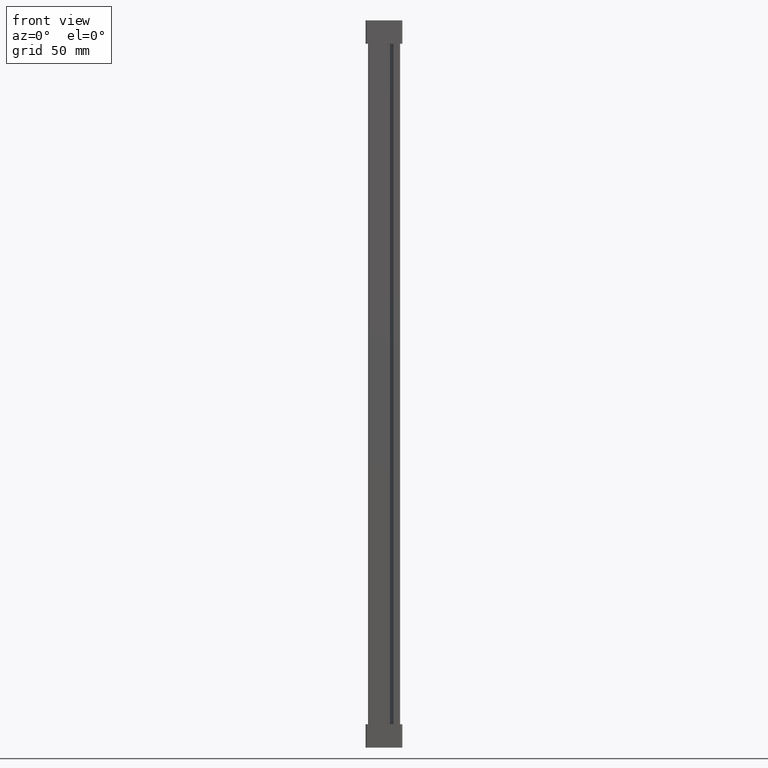
[diagram: clean part render]
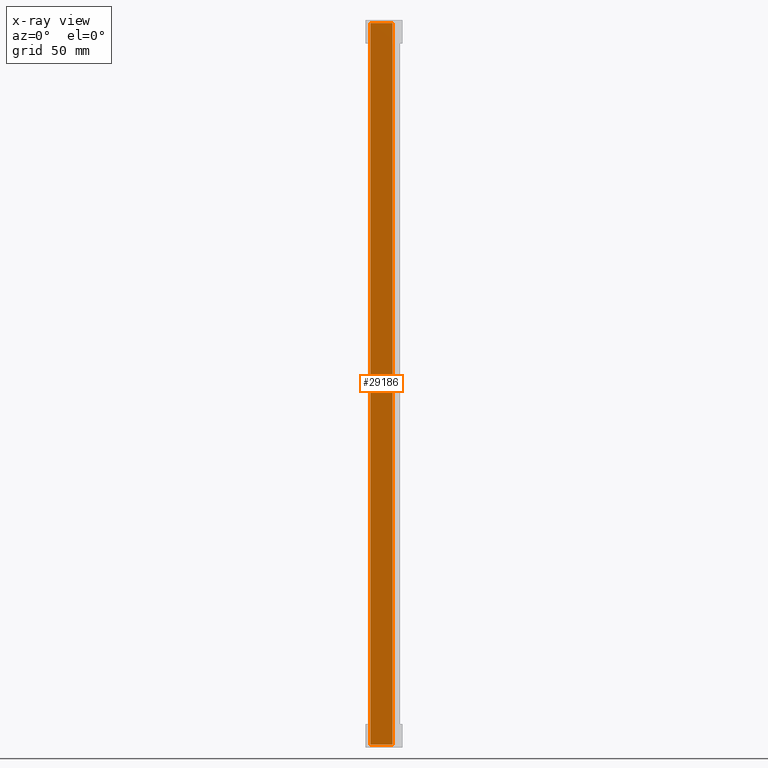
[diagram: x-ray — body ghosted, one internal face saturated and labeled with its STEP entity id]
A machine part, front view, then the same camera in x-ray: the body is ghosted and one INTERNAL B-rep face — a face not visible from any outside direction — is saturated and labeled: STEP entity #29186.
In plain terms, the highlighted planar face has unit normal (0, 1, 0).
Its self-contained STEP definition (entity closure, byte-faithful):
#1831 = AXIS2_PLACEMENT_3D ( 'NONE', #24348, #24334, #24320 ) ;
#2314 = VECTOR ( 'NONE', #7152, 1000.000000000000000 ) ;
#2333 = VECTOR ( 'NONE', #7169, 1000.000000000000000 ) ;
#2352 = VECTOR ( 'NONE', #7177, 1000.000000000000000 ) ;
#2407 = VECTOR ( 'NONE', #7204, 1000.000000000000000 ) ;
#7138 = LINE ( 'NONE', #7181, #2352 ) ;
#7147 = LINE ( 'NONE', #7179, #2333 ) ;
#7151 = LINE ( 'NONE', #7162, #2314 ) ;
#7152 = DIRECTION ( 'NONE',  ( -0.0000000000000000000, -0.0000000000000000000, -1.000000000000000000 ) ) ;
#7162 = CARTESIAN_POINT ( 'NONE',  ( 10.24323328473354500, 16.44999999999991800, -105.0100000000000200 ) ) ;
#7169 = DIRECTION ( 'NONE',  ( 0.0000000000000000000, -0.0000000000000000000, 1.000000000000000000 ) ) ;
#7177 = DIRECTION ( 'NONE',  ( -1.000000000000000000, -0.0000000000000000000, 4.965472477636011600E-013 ) ) ;
#7179 = CARTESIAN_POINT ( 'NONE',  ( 0.4259999999998995700, 16.44999999999995700, 219.0000000000000000 ) ) ;
#7181 = CARTESIAN_POINT ( 'NONE',  ( 13.86600000010872900, 16.44999999999995700, 217.8000000000516800 ) ) ;
#7204 = DIRECTION ( 'NONE',  ( 1.000000000000000000, -0.0000000000000000000, 4.965472477636011600E-013 ) ) ;
#7209 = LINE ( 'NONE', #7221, #2407 ) ;
#7221 = CARTESIAN_POINT ( 'NONE',  ( 13.86600000010872900, 16.44999999999995700, -103.8000000000516800 ) ) ;
#8175 = CARTESIAN_POINT ( 'NONE',  ( 0.4259999999999116700, 16.44999999999995700, -103.8000000000583600 ) ) ;
#8204 = CARTESIAN_POINT ( 'NONE',  ( 0.4259999999999001300, 16.44999999999995700, 217.8000000000583600 ) ) ;
#8224 = CARTESIAN_POINT ( 'NONE',  ( 10.24323328473354500, 16.44999999999994600, 217.8000000000267300 ) ) ;
#8275 = CARTESIAN_POINT ( 'NONE',  ( 10.24323328473354500, 16.44999999999993500, -103.8000000000535000 ) ) ;
#13415 = ORIENTED_EDGE ( 'NONE', *, *, #29600, .T. ) ;
#13449 = ORIENTED_EDGE ( 'NONE', *, *, #29622, .T. ) ;
#13453 = ORIENTED_EDGE ( 'NONE', *, *, #29607, .F. ) ;
#13480 = ORIENTED_EDGE ( 'NONE', *, *, #29602, .F. ) ;
#22533 = VERTEX_POINT ( 'NONE', #8175 ) ;
#22548 = VERTEX_POINT ( 'NONE', #8204 ) ;
#22657 = VERTEX_POINT ( 'NONE', #8224 ) ;
#22715 = VERTEX_POINT ( 'NONE', #8275 ) ;
#24303 = FACE_OUTER_BOUND ( 'NONE', #27806, .T. ) ;
#24319 = PLANE ( 'NONE',  #1831 ) ;
#24320 = DIRECTION ( 'NONE',  ( 0.0000000000000000000, -0.0000000000000000000, 1.000000000000000000 ) ) ;
#24334 = DIRECTION ( 'NONE',  ( 0.0000000000000000000, 1.000000000000000000, 0.0000000000000000000 ) ) ;
#24348 = CARTESIAN_POINT ( 'NONE',  ( 6.525548534933072600, 16.44999999999995700, 219.0000000000000000 ) ) ;
#27806 = EDGE_LOOP ( 'NONE', ( #13415, #13453, #13449, #13480 ) ) ;
#29186 = ADVANCED_FACE ( 'NONE', ( #24303 ), #24319, .F. ) ;
#29600 = EDGE_CURVE ( 'NONE', #22657, #22548, #7138, .T. ) ;
#29602 = EDGE_CURVE ( 'NONE', #22657, #22715, #7151, .T. ) ;
#29607 = EDGE_CURVE ( 'NONE', #22533, #22548, #7147, .T. ) ;
#29622 = EDGE_CURVE ( 'NONE', #22533, #22715, #7209, .T. ) ;